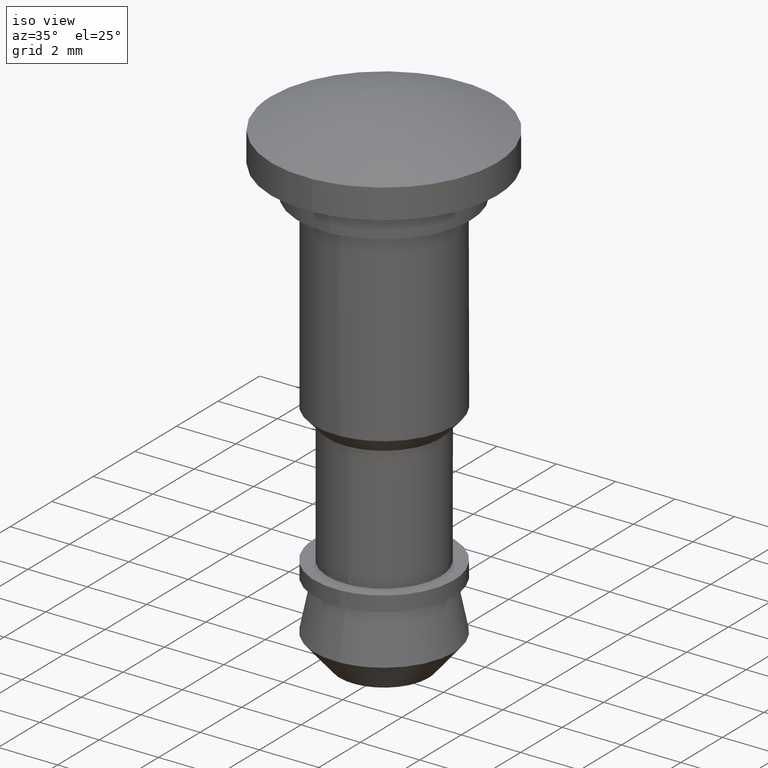
[diagram: clean part render]
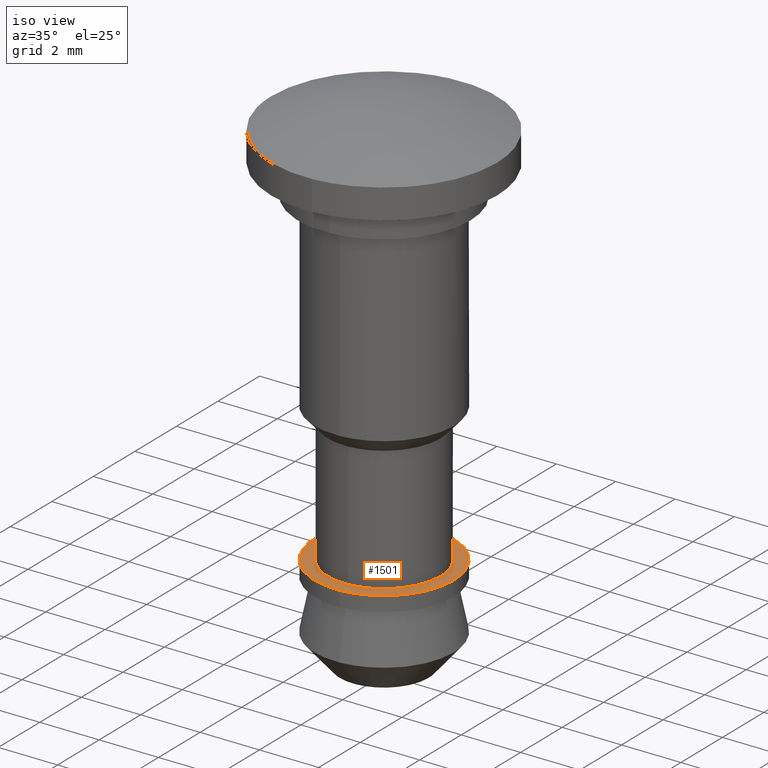
[diagram: same view with one face highlighted and labeled with its STEP entity id]
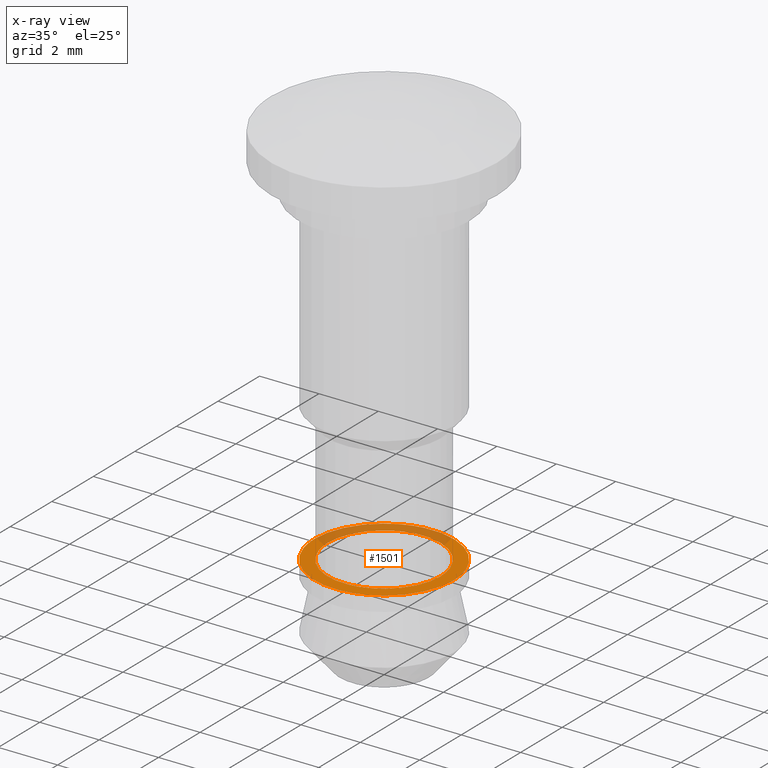
[diagram: x-ray of the same camera — body ghosted, the highlighted face saturated]
A machine part, iso view. The second image highlights one B-rep face of the part: STEP entity #1501.
The next image is the same camera in x-ray: the body ghosted, the highlighted face saturated — about 31% of this face is hidden behind the body in this view.
In plain terms, the highlighted face is a freeform B-spline surface patch.
Its self-contained STEP definition (entity closure, byte-faithful):
#630=CARTESIAN_POINT('',(0.115989116346557,-1.896456307136930,-11.100000000000000));
#631=VERTEX_POINT('',#630);
#637=CARTESIAN_POINT('',(1.900000000000000,0.0,-11.100000000000000));
#638=VERTEX_POINT('',#637);
#639=CARTESIAN_POINT('',(1.900000000000000,0.0,-11.100000000000000));
#640=CARTESIAN_POINT('',(1.900000000000000,-1.787344462501211,-11.100000000000003));
#641=CARTESIAN_POINT('',(0.115989116346558,-1.896456307136930,-11.099999999999998));
#649=(BOUNDED_CURVE()B_SPLINE_CURVE(2,(#639,#640,#641),.UNSPECIFIED.,.F.,.U.)B_SPLINE_CURVE_WITH_KNOTS((3,3),(0.500000000000000,0.739333245089715),.UNSPECIFIED.)CURVE()GEOMETRIC_REPRESENTATION_ITEM()RATIONAL_B_SPLINE_CURVE((1.0,0.719603661906417,0.976072647870516))REPRESENTATION_ITEM(''));
#650=EDGE_CURVE('',#638,#631,#649,.T.);
#652=CARTESIAN_POINT('',(-0.224262799936259,1.886718367048891,-11.100000000000000));
#653=VERTEX_POINT('',#652);
#654=CARTESIAN_POINT('',(-0.224262799936259,1.886718367048890,-11.099999999999998));
#655=CARTESIAN_POINT('',(-0.112524692511293,1.900000000000000,-11.100000000000007));
#656=CARTESIAN_POINT('',(0.0,1.900000000000000,-11.100000000000000));
#657=CARTESIAN_POINT('',(1.900000000000000,1.900000000000000,-11.100000000000001));
#658=CARTESIAN_POINT('',(1.900000000000000,0.0,-11.100000000000000));
#666=(BOUNDED_CURVE()B_SPLINE_CURVE(2,(#654,#655,#656,#657,#658),.UNSPECIFIED.,.F.,.U.)B_SPLINE_CURVE_WITH_KNOTS((3,2,3),(0.229562674693754,0.250000000000000,0.500000000000000),.UNSPECIFIED.)CURVE()GEOMETRIC_REPRESENTATION_ITEM()RATIONAL_B_SPLINE_CURVE((0.956027148505594,0.976056184028464,1.0,0.707106781186547,1.0))REPRESENTATION_ITEM(''));
#667=EDGE_CURVE('',#653,#638,#666,.T.);
#697=CARTESIAN_POINT('',(-1.900000000000000,0.0,-11.100000000000000));
#698=VERTEX_POINT('',#697);
#699=CARTESIAN_POINT('',(-1.900000000000000,0.0,-11.100000000000000));
#700=CARTESIAN_POINT('',(-1.900000000000000,1.687533622253673,-11.100000000000001));
#701=CARTESIAN_POINT('',(-0.224262799936259,1.886718367048890,-11.099999999999998));
#709=(BOUNDED_CURVE()B_SPLINE_CURVE(2,(#699,#700,#701),.UNSPECIFIED.,.F.,.U.)B_SPLINE_CURVE_WITH_KNOTS((3,3),(0.0,0.229562674693754),.UNSPECIFIED.)CURVE()GEOMETRIC_REPRESENTATION_ITEM()RATIONAL_B_SPLINE_CURVE((1.0,0.731050597158083,0.956027148505594))REPRESENTATION_ITEM(''));
#710=EDGE_CURVE('',#698,#653,#709,.T.);
#712=CARTESIAN_POINT('',(0.115989116346558,-1.896456307136930,-11.099999999999998));
#713=CARTESIAN_POINT('',(0.058048691524335,-1.900000000000000,-11.099999999999996));
#714=CARTESIAN_POINT('',(0.0,-1.900000000000000,-11.100000000000000));
#715=CARTESIAN_POINT('',(-1.900000000000000,-1.900000000000000,-11.100000000000001));
#716=CARTESIAN_POINT('',(-1.900000000000000,0.0,-11.100000000000000));
#724=(BOUNDED_CURVE()B_SPLINE_CURVE(2,(#712,#713,#714,#715,#716),.UNSPECIFIED.,.F.,.U.)B_SPLINE_CURVE_WITH_KNOTS((3,2,3),(0.739333245089715,0.750000000000000,1.0),.UNSPECIFIED.)CURVE()GEOMETRIC_REPRESENTATION_ITEM()RATIONAL_B_SPLINE_CURVE((0.976072647870516,0.987503119280130,1.0,0.707106781186547,1.0))REPRESENTATION_ITEM(''));
#725=EDGE_CURVE('',#631,#698,#724,.T.);
#754=CARTESIAN_POINT('',(-0.277376736578888,2.333572828516576,-11.100000000000190));
#755=VERTEX_POINT('',#754);
#756=CARTESIAN_POINT('',(2.350000000000000,0.0,-11.100000000000000));
#757=VERTEX_POINT('',#756);
#758=CARTESIAN_POINT('',(-0.277376736578888,2.333572828516576,-11.100000000000195));
#759=CARTESIAN_POINT('',(-0.139174804113649,2.350000000000000,-11.100000000000003));
#760=CARTESIAN_POINT('',(0.0,2.350000000000000,-11.100000000000000));
#761=CARTESIAN_POINT('',(2.350000000000001,2.350000000000001,-11.100000000000001));
#762=CARTESIAN_POINT('',(2.350000000000000,0.0,-11.100000000000000));
#770=(BOUNDED_CURVE()B_SPLINE_CURVE(2,(#758,#759,#760,#761,#762),.UNSPECIFIED.,.F.,.U.)B_SPLINE_CURVE_WITH_KNOTS((3,2,3),(0.229562742555607,0.250000000000000,0.500000000000000),.UNSPECIFIED.)CURVE()GEOMETRIC_REPRESENTATION_ITEM()RATIONAL_B_SPLINE_CURVE((0.956027281517901,0.976056263533570,1.0,0.707106781186547,1.0))REPRESENTATION_ITEM(''));
#771=EDGE_CURVE('',#755,#757,#770,.T.);
#773=CARTESIAN_POINT('',(0.143464067918807,-2.345616776290660,-11.100000000000000));
#774=VERTEX_POINT('',#773);
#775=CARTESIAN_POINT('',(2.350000000000000,0.0,-11.100000000000000));
#776=CARTESIAN_POINT('',(2.350000000000001,-2.210659257205937,-11.100000000000001));
#777=CARTESIAN_POINT('',(0.143464067918807,-2.345616776290660,-11.100000000000001));
#785=(BOUNDED_CURVE()B_SPLINE_CURVE(2,(#775,#776,#777),.UNSPECIFIED.,.F.,.U.)B_SPLINE_CURVE_WITH_KNOTS((3,3),(0.500000000000000,0.739332962240220),.UNSPECIFIED.)CURVE()GEOMETRIC_REPRESENTATION_ITEM()RATIONAL_B_SPLINE_CURVE((1.0,0.719603993285214,0.976072041669454))REPRESENTATION_ITEM(''));
#786=EDGE_CURVE('',#757,#774,#785,.T.);
#857=CARTESIAN_POINT('',(-2.350000000000000,0.0,-11.100000000000000));
#858=VERTEX_POINT('',#857);
#859=CARTESIAN_POINT('',(-2.350000000000000,0.0,-11.100000000000000));
#860=CARTESIAN_POINT('',(-2.350000000000001,2.087213482053114,-11.100000000000000));
#861=CARTESIAN_POINT('',(-0.277376736578888,2.333572828516576,-11.100000000000195));
#869=(BOUNDED_CURVE()B_SPLINE_CURVE(2,(#859,#860,#861),.UNSPECIFIED.,.F.,.U.)B_SPLINE_CURVE_WITH_KNOTS((3,3),(0.0,0.229562742555607),.UNSPECIFIED.)CURVE()GEOMETRIC_REPRESENTATION_ITEM()RATIONAL_B_SPLINE_CURVE((1.0,0.731050517652977,0.956027281517901))REPRESENTATION_ITEM(''));
#870=EDGE_CURVE('',#858,#755,#869,.T.);
#904=CARTESIAN_POINT('',(0.143464067918807,-2.345616776290660,-11.099999999999996));
#905=CARTESIAN_POINT('',(0.071798993763610,-2.350000000000000,-11.099999999999996));
#906=CARTESIAN_POINT('',(0.0,-2.350000000000000,-11.100000000000000));
#907=CARTESIAN_POINT('',(-2.350000000000001,-2.350000000000001,-11.100000000000001));
#908=CARTESIAN_POINT('',(-2.350000000000000,0.0,-11.100000000000000));
#916=(BOUNDED_CURVE()B_SPLINE_CURVE(2,(#904,#905,#906,#907,#908),.UNSPECIFIED.,.F.,.U.)B_SPLINE_CURVE_WITH_KNOTS((3,2,3),(0.739332962240219,0.750000000000000,1.0),.UNSPECIFIED.)CURVE()GEOMETRIC_REPRESENTATION_ITEM()RATIONAL_B_SPLINE_CURVE((0.976072041669452,0.987502787901332,1.0,0.707106781186547,1.0))REPRESENTATION_ITEM(''));
#917=EDGE_CURVE('',#774,#858,#916,.T.);
#1484=CARTESIAN_POINT('',(-2.584764885858312,-2.584707926339988,-11.100000000000000));
#1485=CARTESIAN_POINT('',(2.584764759794489,-2.584707926339988,-11.100000000000000));
#1486=CARTESIAN_POINT('',(-2.584764885858312,2.584722255594615,-11.100000000000000));
#1487=CARTESIAN_POINT('',(2.584764759794489,2.584722255594615,-11.100000000000000));
#1488=B_SPLINE_SURFACE_WITH_KNOTS('',1,1,((#1484,#1486),(#1485,#1487)),.UNSPECIFIED.,.F.,.F.,.U.,(2,2),(2,2),(0.0,5.169529645652801),(0.0,5.169430181934603),.UNSPECIFIED.);
#1489=ORIENTED_EDGE('',*,*,#917,.F.);
#1490=ORIENTED_EDGE('',*,*,#786,.F.);
#1491=ORIENTED_EDGE('',*,*,#771,.F.);
#1492=ORIENTED_EDGE('',*,*,#870,.F.);
#1493=EDGE_LOOP('',(#1489,#1490,#1491,#1492));
#1494=FACE_OUTER_BOUND('',#1493,.T.);
#1495=ORIENTED_EDGE('',*,*,#650,.T.);
#1496=ORIENTED_EDGE('',*,*,#725,.T.);
#1497=ORIENTED_EDGE('',*,*,#710,.T.);
#1498=ORIENTED_EDGE('',*,*,#667,.T.);
#1499=EDGE_LOOP('',(#1495,#1496,#1497,#1498));
#1500=FACE_BOUND('',#1499,.T.);
#1501=ADVANCED_FACE('',(#1494,#1500),#1488,.T.);